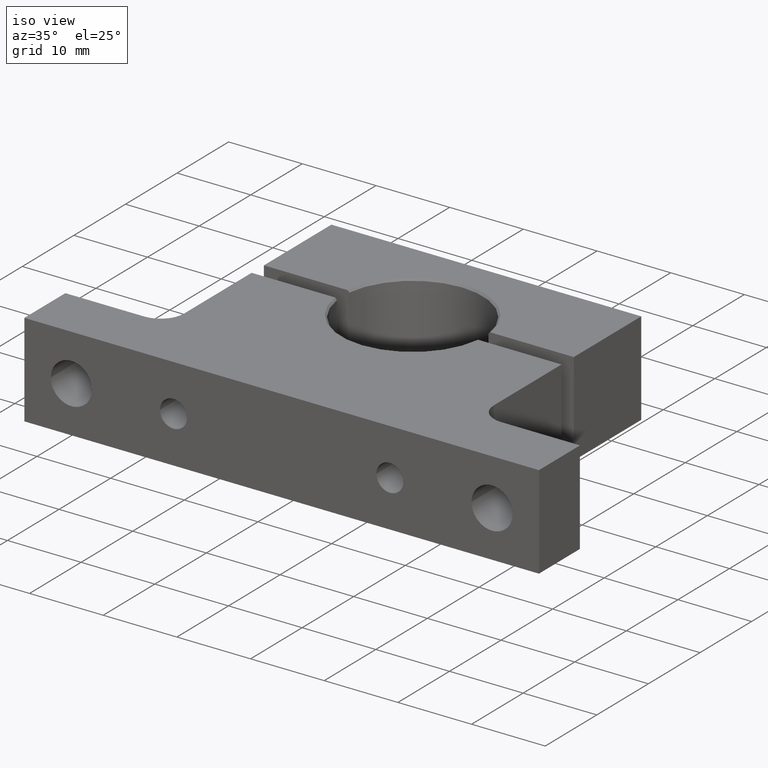
[diagram: clean part render]
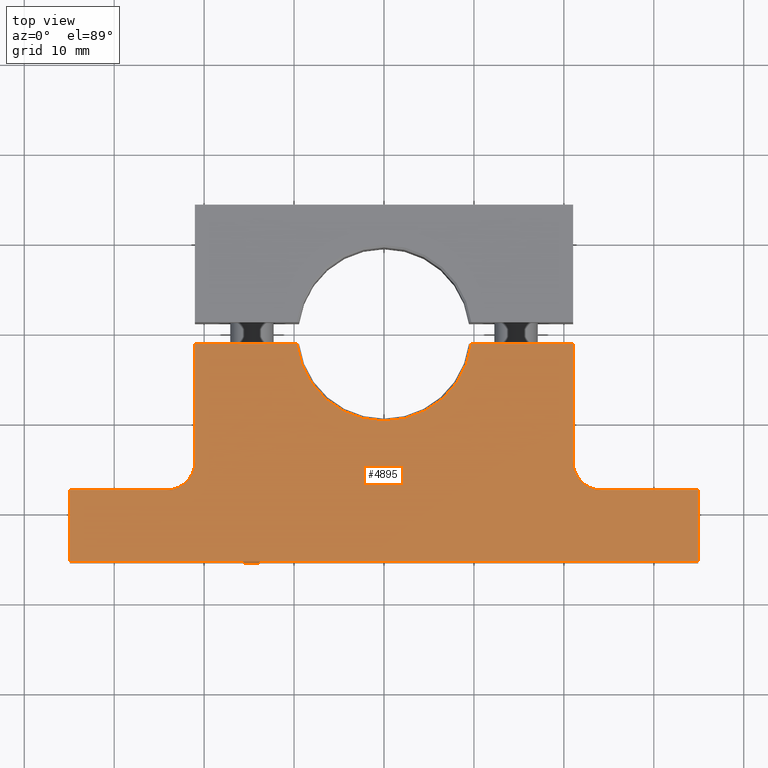
[diagram: tour spotlight — one face highlighted and labeled with its STEP entity id]
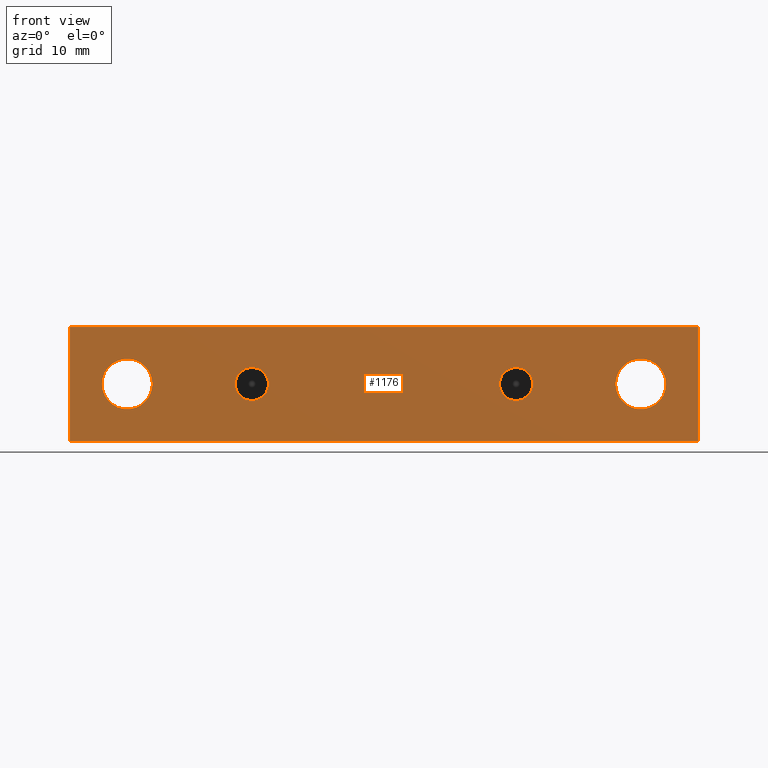
[diagram: tour spotlight — one face highlighted and labeled with its STEP entity id]
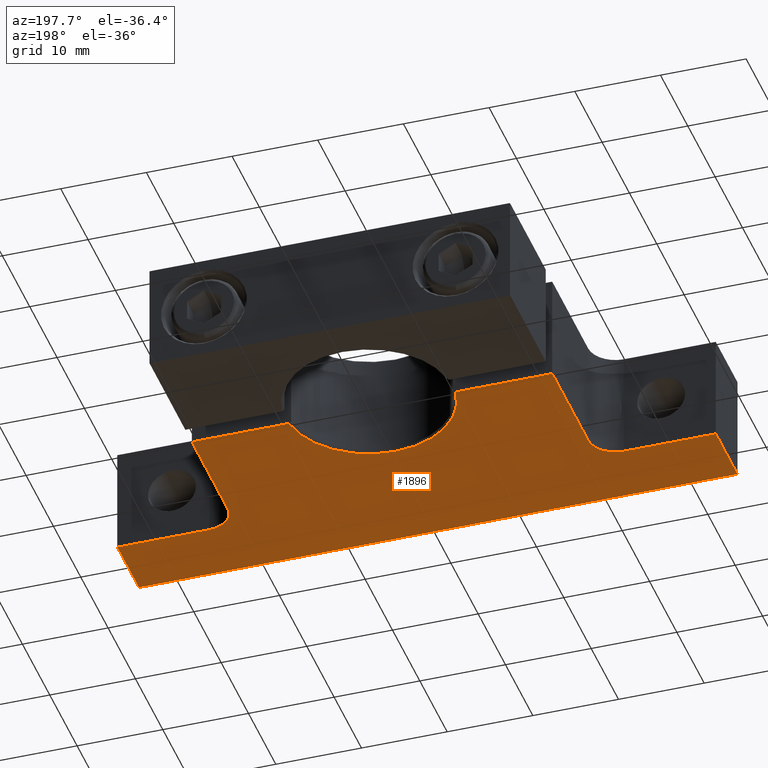
[diagram: tour spotlight — one face highlighted and labeled with its STEP entity id]
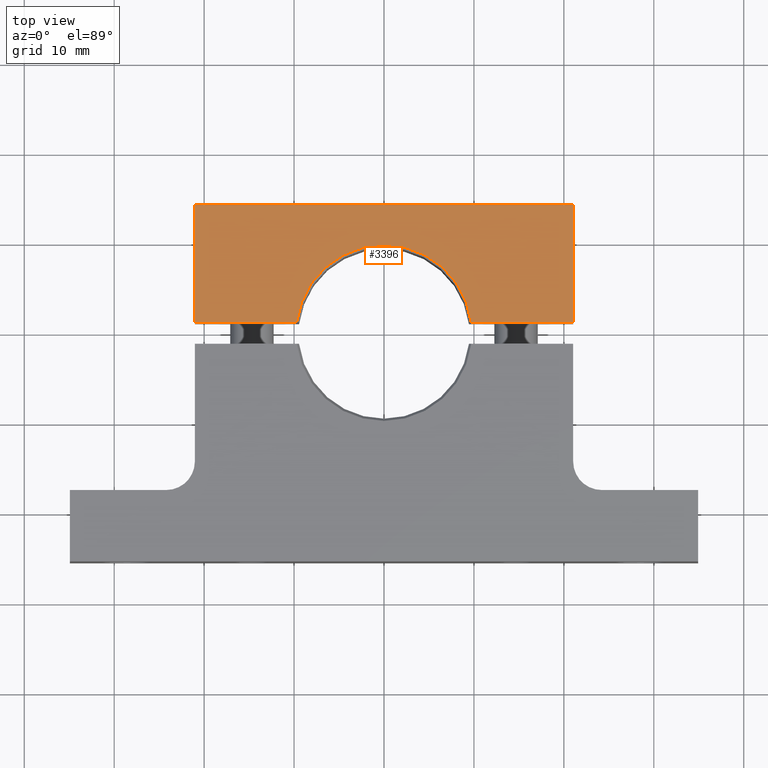
[diagram: tour spotlight — one face highlighted and labeled with its STEP entity id]
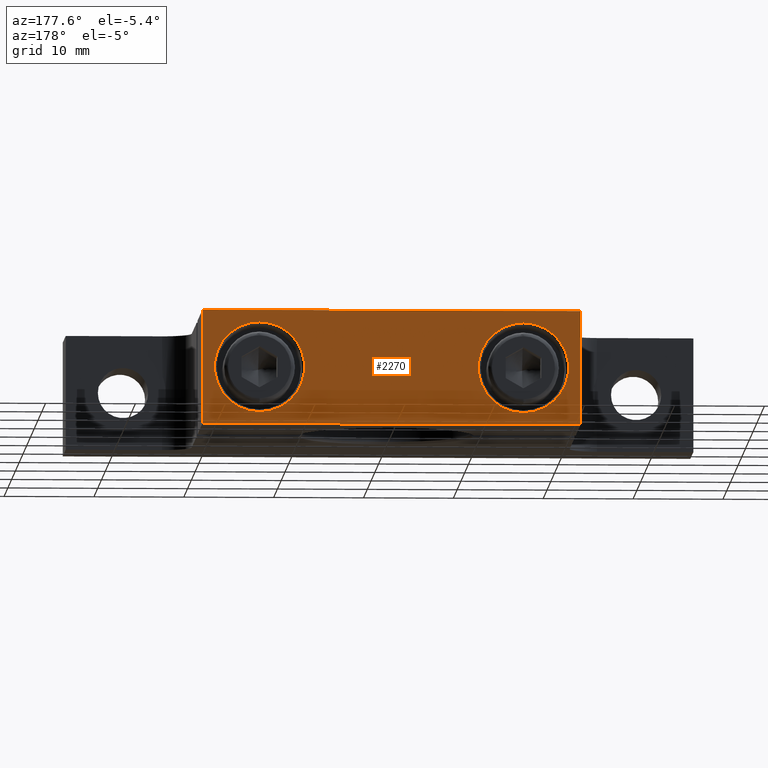
[diagram: tour spotlight — one face highlighted and labeled with its STEP entity id]
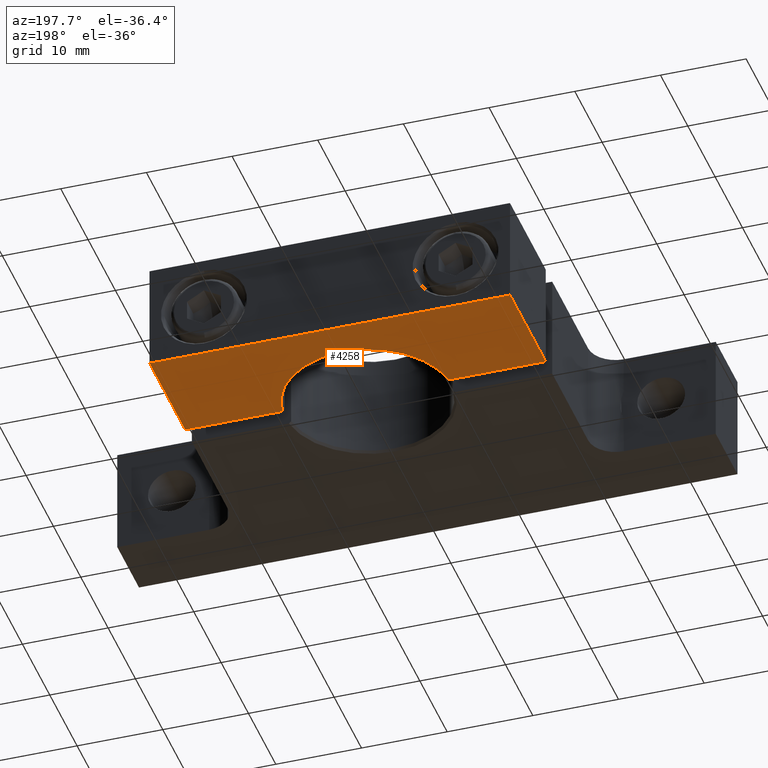
[diagram: tour spotlight — one face highlighted and labeled with its STEP entity id]
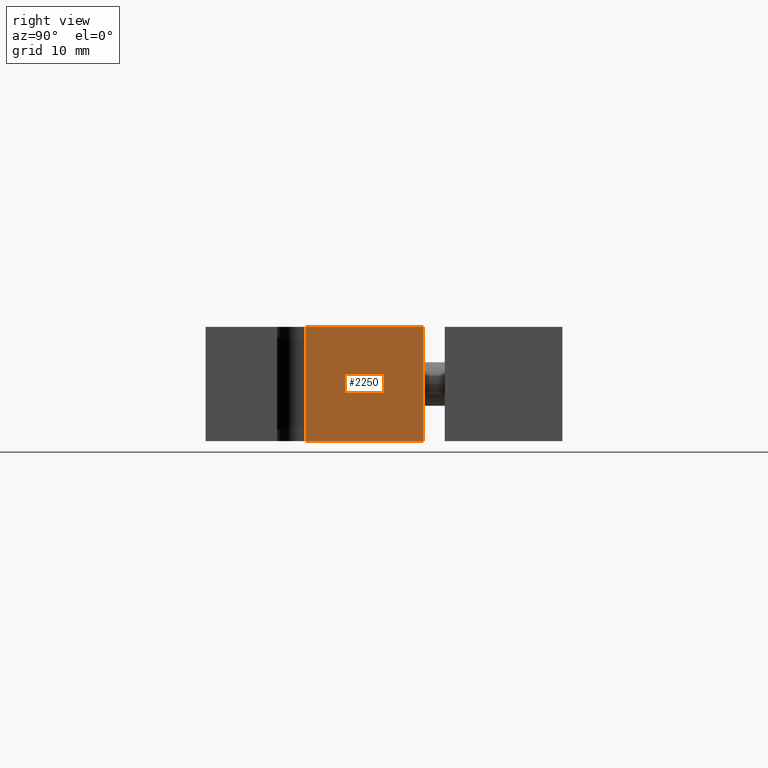
[diagram: tour spotlight — one face highlighted and labeled with its STEP entity id]
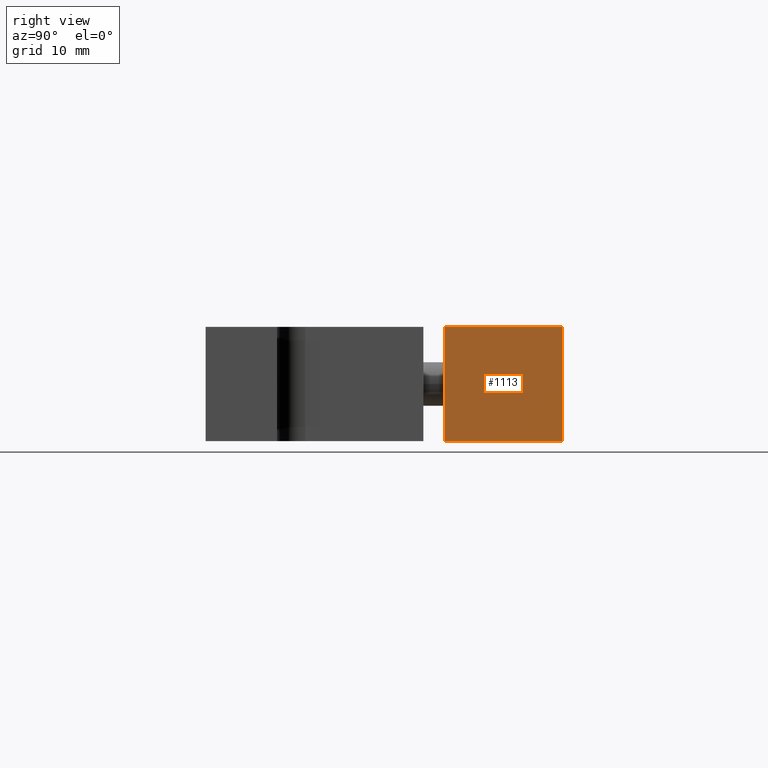
[diagram: tour spotlight — one face highlighted and labeled with its STEP entity id]
A machine part: a face-by-face anatomy tour. The part has 93 B-rep faces; the first image is the clean iso view, then the 8 largest visible faces are spotlighted one at a time (largest first), each with its STEP entity span.

Face 1 — top view, entity #4895. In plain terms, the highlighted planar face has unit normal (0, 0, 1).
Definition (entity closure, byte-faithful):
#80 = DIRECTION ( 'NONE',  ( 1.000000000000000000, 0.0000000000000000000, -0.0000000000000000000 ) ) ;
#120 = CARTESIAN_POINT ( 'NONE',  ( 5.463696000000001000E-017, -0.6875000000000001100, 0.2500000000000000600 ) ) ;
#168 = ORIENTED_EDGE ( 'NONE', *, *, #1902, .T. ) ;
#191 = EDGE_CURVE ( 'NONE', #2671, #2342, #3526, .T. ) ;
#194 = CARTESIAN_POINT ( 'NONE',  ( 1.375000000000000200, -1.000000000000000200, 0.2500000000000000600 ) ) ;
#207 = CARTESIAN_POINT ( 'NONE',  ( -0.3821357538513739900, -0.04687500000000001400, 0.2500000000045041700 ) ) ;
#280 = DIRECTION ( 'NONE',  ( 1.000000000000000000, 0.0000000000000000000, 0.0000000000000000000 ) ) ;
#377 = CARTESIAN_POINT ( 'NONE',  ( 5.463696000000001000E-017, -0.6875000000000001100, 0.2500000000000000600 ) ) ;
#451 = DIRECTION ( 'NONE',  ( -0.0000000000000000000, -0.0000000000000000000, -1.000000000000000000 ) ) ;
#508 = AXIS2_PLACEMENT_3D ( 'NONE', #4859, #2540, #280 ) ;
#618 = FACE_OUTER_BOUND ( 'NONE', #2855, .T. ) ;
#676 = CARTESIAN_POINT ( 'NONE',  ( -1.375000000000000200, -0.6182210772702301200, 0.2500000000000000600 ) ) ;
#677 = VERTEX_POINT ( 'NONE', #194 ) ;
#727 = CIRCLE ( 'NONE', #3467, 0.1250000000000000300 ) ;
#728 = ORIENTED_EDGE ( 'NONE', *, *, #4311, .T. ) ;
#789 = CARTESIAN_POINT ( 'NONE',  ( 0.8280000000000000700, -0.5625000000000001100, 0.2500000000000000600 ) ) ;
#985 = DIRECTION ( 'NONE',  ( -1.000000000000000000, -0.0000000000000000000, 0.0000000000000000000 ) ) ;
#1044 = CARTESIAN_POINT ( 'NONE',  ( 0.3821357538513739400, -0.04687500000000001400, 0.2500000000045041200 ) ) ;
#1053 = DIRECTION ( 'NONE',  ( 0.0000000000000000000, -1.000000000000000000, -0.0000000000000000000 ) ) ;
#1222 = CARTESIAN_POINT ( 'NONE',  ( 5.463696000000001000E-017, -1.000000000000000200, 0.2500000000000000600 ) ) ;
#1256 = EDGE_CURVE ( 'NONE', #3444, #1530, #1733, .T. ) ;
#1275 = ORIENTED_EDGE ( 'NONE', *, *, #2925, .T. ) ;
#1343 = CARTESIAN_POINT ( 'NONE',  ( -0.8280000000000000700, -0.04687500000000002800, 0.2500000000000000600 ) ) ;
#1397 = CARTESIAN_POINT ( 'NONE',  ( 1.375000000000000200, -0.6182210772702301200, 0.2500000000000000600 ) ) ;
#1416 = LINE ( 'NONE', #4298, #4338 ) ;
#1513 = CARTESIAN_POINT ( 'NONE',  ( 0.0000000000000000000, 0.0000000000000000000, 0.2500000000044874100 ) ) ;
#1530 = VERTEX_POINT ( 'NONE', #4635 ) ;
#1586 = DIRECTION ( 'NONE',  ( -0.0000000000000000000, 1.000000000000000000, 0.0000000000000000000 ) ) ;
#1613 = LINE ( 'NONE', #3261, #3625 ) ;
#1642 = VECTOR ( 'NONE', #4483, 39.37007874015748100 ) ;
#1654 = LINE ( 'NONE', #1222, #3422 ) ;
#1733 = LINE ( 'NONE', #377, #2724 ) ;
#1745 = LINE ( 'NONE', #4241, #2735 ) ;
#1791 = VERTEX_POINT ( 'NONE', #3685 ) ;
#1826 = VERTEX_POINT ( 'NONE', #1044 ) ;
#1863 = CARTESIAN_POINT ( 'NONE',  ( -0.8280000000000000700, -0.5625000000000001100, 0.2500000000000000600 ) ) ;
#1884 = VECTOR ( 'NONE', #4839, 39.37007874015748100 ) ;
#1902 = EDGE_CURVE ( 'NONE', #677, #2671, #4921, .T. ) ;
#1909 = DIRECTION ( 'NONE',  ( 1.000000000000000000, 0.0000000000000000000, 0.0000000000000000000 ) ) ;
#2116 = ORIENTED_EDGE ( 'NONE', *, *, #4224, .T. ) ;
#2147 = CARTESIAN_POINT ( 'NONE',  ( 5.463696000000001000E-017, -0.6182210772702301200, 0.2500000000000000600 ) ) ;
#2245 = VERTEX_POINT ( 'NONE', #4108 ) ;
#2290 = ORIENTED_EDGE ( 'NONE', *, *, #2492, .T. ) ;
#2342 = VERTEX_POINT ( 'NONE', #4553 ) ;
#2451 = VECTOR ( 'NONE', #1586, 39.37007874015748100 ) ;
#2492 = EDGE_CURVE ( 'NONE', #4181, #1791, #3472, .T. ) ;
#2508 = DIRECTION ( 'NONE',  ( 1.000000000000000000, 0.0000000000000000000, -0.0000000000000000000 ) ) ;
#2540 = DIRECTION ( 'NONE',  ( -0.0000000000000000000, -0.0000000000000000000, -1.000000000000000000 ) ) ;
#2555 = ORIENTED_EDGE ( 'NONE', *, *, #2803, .T. ) ;
#2635 = DIRECTION ( 'NONE',  ( -1.000000000000000000, -0.0000000000000000000, 0.0000000000000000000 ) ) ;
#2671 = VERTEX_POINT ( 'NONE', #3517 ) ;
#2702 = CARTESIAN_POINT ( 'NONE',  ( 0.8280000000000000700, -0.6182210772702301200, 0.2500000000000000600 ) ) ;
#2719 = CARTESIAN_POINT ( 'NONE',  ( -0.9530000000000000700, -0.5625000000000001100, 0.2500000000000000600 ) ) ;
#2724 = VECTOR ( 'NONE', #2635, 39.37007874015748100 ) ;
#2735 = VECTOR ( 'NONE', #3866, 39.37007874015748100 ) ;
#2740 = VECTOR ( 'NONE', #1053, 39.37007874015748100 ) ;
#2803 = EDGE_CURVE ( 'NONE', #2245, #677, #1654, .T. ) ;
#2855 = EDGE_LOOP ( 'NONE', ( #2290, #2116, #3919, #728, #1275, #3795, #4844, #4273, #2555, #168, #2889, #3324 ) ) ;
#2861 = CIRCLE ( 'NONE', #508, 0.1250000000000000300 ) ;
#2889 = ORIENTED_EDGE ( 'NONE', *, *, #191, .T. ) ;
#2925 = EDGE_CURVE ( 'NONE', #4818, #4123, #1416, .T. ) ;
#3101 = DIRECTION ( 'NONE',  ( 1.000000000000000000, 0.0000000000000000000, 0.0000000000000000000 ) ) ;
#3230 = CARTESIAN_POINT ( 'NONE',  ( -0.9530000000000000700, -0.6875000000000001100, 0.2500000000000000600 ) ) ;
#3261 = CARTESIAN_POINT ( 'NONE',  ( 5.463696000000001000E-017, -0.04687500000000002800, 0.2500000000000000600 ) ) ;
#3324 = ORIENTED_EDGE ( 'NONE', *, *, #3947, .T. ) ;
#3422 = VECTOR ( 'NONE', #80, 39.37007874015748100 ) ;
#3444 = VERTEX_POINT ( 'NONE', #3230 ) ;
#3467 = AXIS2_PLACEMENT_3D ( 'NONE', #2719, #451, #3101 ) ;
#3472 = LINE ( 'NONE', #2702, #2451 ) ;
#3517 = CARTESIAN_POINT ( 'NONE',  ( 1.375000000000000200, -0.6875000000000001100, 0.2500000000000000600 ) ) ;
#3526 = LINE ( 'NONE', #120, #1642 ) ;
#3589 = EDGE_CURVE ( 'NONE', #1826, #4826, #3758, .T. ) ;
#3625 = VECTOR ( 'NONE', #985, 39.37007874015748100 ) ;
#3630 = PLANE ( 'NONE',  #4398 ) ;
#3685 = CARTESIAN_POINT ( 'NONE',  ( 0.8280000000000000700, -0.04687500000000002100, 0.2500000000000000600 ) ) ;
#3758 = CIRCLE ( 'NONE', #4253, 0.3849999999955129300 ) ;
#3795 = ORIENTED_EDGE ( 'NONE', *, *, #4225, .T. ) ;
#3866 = DIRECTION ( 'NONE',  ( -1.000000000000000000, -0.0000000000000000000, 0.0000000000000000000 ) ) ;
#3885 = LINE ( 'NONE', #676, #2740 ) ;
#3919 = ORIENTED_EDGE ( 'NONE', *, *, #3589, .T. ) ;
#3947 = EDGE_CURVE ( 'NONE', #2342, #4181, #2861, .T. ) ;
#3968 = DIRECTION ( 'NONE',  ( 0.0000000000000000000, -1.000000000000000000, -0.0000000000000000000 ) ) ;
#4003 = EDGE_CURVE ( 'NONE', #1530, #2245, #3885, .T. ) ;
#4108 = CARTESIAN_POINT ( 'NONE',  ( -1.375000000000000200, -1.000000000000000200, 0.2500000000000000600 ) ) ;
#4123 = VERTEX_POINT ( 'NONE', #1863 ) ;
#4181 = VERTEX_POINT ( 'NONE', #789 ) ;
#4189 = DIRECTION ( 'NONE',  ( 0.0000000000000000000, -0.0000000000000000000, -1.000000000000000000 ) ) ;
#4224 = EDGE_CURVE ( 'NONE', #1791, #1826, #1745, .T. ) ;
#4225 = EDGE_CURVE ( 'NONE', #4123, #3444, #727, .T. ) ;
#4241 = CARTESIAN_POINT ( 'NONE',  ( 5.463696000000001000E-017, -0.04687500000000002800, 0.2500000000000000600 ) ) ;
#4253 = AXIS2_PLACEMENT_3D ( 'NONE', #1513, #4189, #1909 ) ;
#4273 = ORIENTED_EDGE ( 'NONE', *, *, #4003, .T. ) ;
#4298 = CARTESIAN_POINT ( 'NONE',  ( -0.8280000000000000700, -0.6182210772702301200, 0.2500000000000000600 ) ) ;
#4311 = EDGE_CURVE ( 'NONE', #4826, #4818, #1613, .T. ) ;
#4338 = VECTOR ( 'NONE', #3968, 39.37007874015748100 ) ;
#4398 = AXIS2_PLACEMENT_3D ( 'NONE', #2147, #4830, #2508 ) ;
#4483 = DIRECTION ( 'NONE',  ( -1.000000000000000000, -0.0000000000000000000, 0.0000000000000000000 ) ) ;
#4553 = CARTESIAN_POINT ( 'NONE',  ( 0.9530000000000000700, -0.6875000000000001100, 0.2500000000000000600 ) ) ;
#4635 = CARTESIAN_POINT ( 'NONE',  ( -1.375000000000000200, -0.6875000000000001100, 0.2500000000000000600 ) ) ;
#4818 = VERTEX_POINT ( 'NONE', #1343 ) ;
#4826 = VERTEX_POINT ( 'NONE', #207 ) ;
#4830 = DIRECTION ( 'NONE',  ( 0.0000000000000000000, 0.0000000000000000000, 1.000000000000000000 ) ) ;
#4839 = DIRECTION ( 'NONE',  ( -0.0000000000000000000, 1.000000000000000000, 0.0000000000000000000 ) ) ;
#4844 = ORIENTED_EDGE ( 'NONE', *, *, #1256, .T. ) ;
#4859 = CARTESIAN_POINT ( 'NONE',  ( 0.9530000000000000700, -0.5625000000000001100, 0.2500000000000000600 ) ) ;
#4895 = ADVANCED_FACE ( 'NONE', ( #618 ), #3630, .T. ) ;
#4921 = LINE ( 'NONE', #1397, #1884 ) ;

Face 2 — front view, entity #1176. In plain terms, the highlighted planar face has unit normal (0, -1, 0).
Definition (entity closure, byte-faithful):
#20 = CARTESIAN_POINT ( 'NONE',  ( 0.5781250000000006700, -1.000000000000001300, 0.0000000000000000000 ) ) ;
#80 = DIRECTION ( 'NONE',  ( 1.000000000000000000, 0.0000000000000000000, -0.0000000000000000000 ) ) ;
#147 = DIRECTION ( 'NONE',  ( -2.396667000000000100E-016, 1.000000000000000000, 0.0000000000000000000 ) ) ;
#194 = CARTESIAN_POINT ( 'NONE',  ( 1.375000000000000200, -1.000000000000000200, 0.2500000000000000600 ) ) ;
#210 = DIRECTION ( 'NONE',  ( 0.0000000000000000000, 0.0000000000000000000, -1.000000000000000000 ) ) ;
#220 = ORIENTED_EDGE ( 'NONE', *, *, #2803, .F. ) ;
#237 = DIRECTION ( 'NONE',  ( -1.000000000000000000, 0.0000000000000000000, 0.0000000000000000000 ) ) ;
#240 = AXIS2_PLACEMENT_3D ( 'NONE', #1798, #4463, #2159 ) ;
#249 = CARTESIAN_POINT ( 'NONE',  ( 1.375000000000000200, -1.000000000000000200, -0.2500000000000000600 ) ) ;
#267 = CARTESIAN_POINT ( 'NONE',  ( 1.124125000000001200, -1.000000000000000200, 0.0000000000000000000 ) ) ;
#299 = VECTOR ( 'NONE', #3048, 39.37007874015748100 ) ;
#366 = DIRECTION ( 'NONE',  ( -4.143087000000000100E-016, 1.000000000000000000, 0.0000000000000000000 ) ) ;
#398 = CARTESIAN_POINT ( 'NONE',  ( 1.375000000000000200, -1.000000000000000200, -0.2500000000000000600 ) ) ;
#409 = DIRECTION ( 'NONE',  ( -1.000000000000000000, 0.0000000000000000000, 0.0000000000000000000 ) ) ;
#468 = VERTEX_POINT ( 'NONE', #4017 ) ;
#483 = AXIS2_PLACEMENT_3D ( 'NONE', #267, #2922, #665 ) ;
#502 = VERTEX_POINT ( 'NONE', #4719 ) ;
#657 = FACE_BOUND ( 'NONE', #4734, .T. ) ;
#665 = DIRECTION ( 'NONE',  ( -1.000000000000000000, 0.0000000000000000000, 0.0000000000000000000 ) ) ;
#677 = VERTEX_POINT ( 'NONE', #194 ) ;
#678 = EDGE_LOOP ( 'NONE', ( #1212, #3488 ) ) ;
#688 = EDGE_CURVE ( 'NONE', #677, #4403, #2615, .T. ) ;
#696 = EDGE_LOOP ( 'NONE', ( #4001, #2840, #220, #4942 ) ) ;
#762 = CARTESIAN_POINT ( 'NONE',  ( 1.234125000000001200, -1.000000000000000200, 1.347111479062091700E-017 ) ) ;
#776 = AXIS2_PLACEMENT_3D ( 'NONE', #1422, #4085, #1811 ) ;
#842 = CIRCLE ( 'NONE', #4505, 0.1099999999999999200 ) ;
#1008 = EDGE_LOOP ( 'NONE', ( #1556, #2646 ) ) ;
#1009 = VERTEX_POINT ( 'NONE', #2095 ) ;
#1051 = PLANE ( 'NONE',  #1325 ) ;
#1063 = ORIENTED_EDGE ( 'NONE', *, *, #4457, .T. ) ;
#1176 = ADVANCED_FACE ( 'NONE', ( #1673, #3692, #4718, #657, #4607 ), #1051, .T. ) ;
#1212 = ORIENTED_EDGE ( 'NONE', *, *, #2886, .T. ) ;
#1222 = CARTESIAN_POINT ( 'NONE',  ( 5.463696000000001000E-017, -1.000000000000000200, 0.2500000000000000600 ) ) ;
#1254 = ORIENTED_EDGE ( 'NONE', *, *, #4888, .T. ) ;
#1276 = AXIS2_PLACEMENT_3D ( 'NONE', #1450, #4122, #1843 ) ;
#1325 = AXIS2_PLACEMENT_3D ( 'NONE', #4115, #1836, #4504 ) ;
#1422 = CARTESIAN_POINT ( 'NONE',  ( -0.5781249999999995600, -1.000000000000001300, 0.0000000000000000000 ) ) ;
#1450 = CARTESIAN_POINT ( 'NONE',  ( 1.124125000000001200, -1.000000000000000200, 0.0000000000000000000 ) ) ;
#1556 = ORIENTED_EDGE ( 'NONE', *, *, #3570, .T. ) ;
#1633 = VECTOR ( 'NONE', #210, 39.37007874015748100 ) ;
#1650 = VECTOR ( 'NONE', #1882, 39.37007874015748100 ) ;
#1654 = LINE ( 'NONE', #1222, #3422 ) ;
#1673 = FACE_BOUND ( 'NONE', #3185, .T. ) ;
#1732 = CIRCLE ( 'NONE', #776, 0.07250000000000005100 ) ;
#1798 = CARTESIAN_POINT ( 'NONE',  ( -1.124125000000000000, -1.000000000000002400, 0.0000000000000000000 ) ) ;
#1811 = DIRECTION ( 'NONE',  ( -1.000000000000000000, 0.0000000000000000000, 0.0000000000000000000 ) ) ;
#1836 = DIRECTION ( 'NONE',  ( 0.0000000000000000000, -1.000000000000000000, 0.0000000000000000000 ) ) ;
#1843 = DIRECTION ( 'NONE',  ( -1.000000000000000000, 0.0000000000000000000, 0.0000000000000000000 ) ) ;
#1882 = DIRECTION ( 'NONE',  ( 0.0000000000000000000, -0.0000000000000000000, -1.000000000000000000 ) ) ;
#1898 = CARTESIAN_POINT ( 'NONE',  ( -1.375000000000000200, -1.000000000000000200, 0.0000000000000000000 ) ) ;
#2095 = CARTESIAN_POINT ( 'NONE',  ( -0.6506249999999995600, -1.000000000000001300, 0.0000000000000000000 ) ) ;
#2112 = EDGE_CURVE ( 'NONE', #2802, #468, #4884, .T. ) ;
#2159 = DIRECTION ( 'NONE',  ( -1.000000000000000000, 0.0000000000000000000, 0.0000000000000000000 ) ) ;
#2245 = VERTEX_POINT ( 'NONE', #4108 ) ;
#2248 = EDGE_CURVE ( 'NONE', #2565, #3450, #4159, .T. ) ;
#2348 = EDGE_CURVE ( 'NONE', #2245, #3710, #4693, .T. ) ;
#2358 = AXIS2_PLACEMENT_3D ( 'NONE', #20, #2675, #409 ) ;
#2411 = CARTESIAN_POINT ( 'NONE',  ( 0.5781250000000006700, -1.000000000000001300, 0.0000000000000000000 ) ) ;
#2477 = CIRCLE ( 'NONE', #483, 0.1100000000000000600 ) ;
#2494 = DIRECTION ( 'NONE',  ( -2.396667000000000100E-016, 1.000000000000000000, 0.0000000000000000000 ) ) ;
#2562 = AXIS2_PLACEMENT_3D ( 'NONE', #4816, #2494, #237 ) ;
#2565 = VERTEX_POINT ( 'NONE', #3833 ) ;
#2615 = LINE ( 'NONE', #4787, #1633 ) ;
#2623 = CARTESIAN_POINT ( 'NONE',  ( -1.124125000000000000, -1.000000000000002400, 0.0000000000000000000 ) ) ;
#2646 = ORIENTED_EDGE ( 'NONE', *, *, #2248, .T. ) ;
#2675 = DIRECTION ( 'NONE',  ( -2.396667000000000100E-016, 1.000000000000000000, 0.0000000000000000000 ) ) ;
#2802 = VERTEX_POINT ( 'NONE', #4672 ) ;
#2803 = EDGE_CURVE ( 'NONE', #2245, #677, #1654, .T. ) ;
#2806 = DIRECTION ( 'NONE',  ( -1.000000000000000000, 0.0000000000000000000, 0.0000000000000000000 ) ) ;
#2840 = ORIENTED_EDGE ( 'NONE', *, *, #688, .F. ) ;
#2886 = EDGE_CURVE ( 'NONE', #468, #2802, #4588, .T. ) ;
#2911 = AXIS2_PLACEMENT_3D ( 'NONE', #2411, #147, #2806 ) ;
#2922 = DIRECTION ( 'NONE',  ( -4.143087000000000100E-016, 1.000000000000000000, 0.0000000000000000000 ) ) ;
#3013 = DIRECTION ( 'NONE',  ( -1.000000000000000000, 0.0000000000000000000, 0.0000000000000000000 ) ) ;
#3045 = CARTESIAN_POINT ( 'NONE',  ( -1.375000000000000200, -1.000000000000000200, -0.2500000000000000600 ) ) ;
#3048 = DIRECTION ( 'NONE',  ( 1.000000000000000000, 0.0000000000000000000, 0.0000000000000000000 ) ) ;
#3185 = EDGE_LOOP ( 'NONE', ( #3640, #1254 ) ) ;
#3207 = LINE ( 'NONE', #398, #299 ) ;
#3222 = CARTESIAN_POINT ( 'NONE',  ( 1.014125000000001100, -1.000000000000000200, 0.0000000000000000000 ) ) ;
#3358 = ORIENTED_EDGE ( 'NONE', *, *, #4018, .T. ) ;
#3422 = VECTOR ( 'NONE', #80, 39.37007874015748100 ) ;
#3450 = VERTEX_POINT ( 'NONE', #4793 ) ;
#3488 = ORIENTED_EDGE ( 'NONE', *, *, #2112, .T. ) ;
#3521 = CIRCLE ( 'NONE', #2562, 0.07250000000000005100 ) ;
#3570 = EDGE_CURVE ( 'NONE', #3450, #2565, #842, .T. ) ;
#3640 = ORIENTED_EDGE ( 'NONE', *, *, #3934, .T. ) ;
#3692 = FACE_BOUND ( 'NONE', #678, .T. ) ;
#3710 = VERTEX_POINT ( 'NONE', #3045 ) ;
#3769 = CIRCLE ( 'NONE', #1276, 0.1100000000000000600 ) ;
#3833 = CARTESIAN_POINT ( 'NONE',  ( -1.014125000000000200, -1.000000000000002400, 1.347111479062089900E-017 ) ) ;
#3934 = EDGE_CURVE ( 'NONE', #1009, #502, #1732, .T. ) ;
#4001 = ORIENTED_EDGE ( 'NONE', *, *, #4162, .T. ) ;
#4017 = CARTESIAN_POINT ( 'NONE',  ( 0.5056250000000006600, -1.000000000000001300, 0.0000000000000000000 ) ) ;
#4018 = EDGE_CURVE ( 'NONE', #4758, #4596, #3769, .T. ) ;
#4085 = DIRECTION ( 'NONE',  ( -2.396667000000000100E-016, 1.000000000000000000, 0.0000000000000000000 ) ) ;
#4108 = CARTESIAN_POINT ( 'NONE',  ( -1.375000000000000200, -1.000000000000000200, 0.2500000000000000600 ) ) ;
#4115 = CARTESIAN_POINT ( 'NONE',  ( 1.375000000000000200, -1.000000000000000200, 0.0000000000000000000 ) ) ;
#4122 = DIRECTION ( 'NONE',  ( -4.143087000000000100E-016, 1.000000000000000000, 0.0000000000000000000 ) ) ;
#4159 = CIRCLE ( 'NONE', #240, 0.1099999999999999200 ) ;
#4162 = EDGE_CURVE ( 'NONE', #3710, #4403, #3207, .T. ) ;
#4403 = VERTEX_POINT ( 'NONE', #249 ) ;
#4457 = EDGE_CURVE ( 'NONE', #4596, #4758, #2477, .T. ) ;
#4463 = DIRECTION ( 'NONE',  ( -4.143087000000000100E-016, 1.000000000000000000, 0.0000000000000000000 ) ) ;
#4504 = DIRECTION ( 'NONE',  ( 0.0000000000000000000, -0.0000000000000000000, -1.000000000000000000 ) ) ;
#4505 = AXIS2_PLACEMENT_3D ( 'NONE', #2623, #366, #3013 ) ;
#4588 = CIRCLE ( 'NONE', #2911, 0.07249999999999998100 ) ;
#4596 = VERTEX_POINT ( 'NONE', #762 ) ;
#4607 = FACE_OUTER_BOUND ( 'NONE', #696, .T. ) ;
#4672 = CARTESIAN_POINT ( 'NONE',  ( 0.6506250000000006800, -1.000000000000001300, 8.878689293818323400E-018 ) ) ;
#4693 = LINE ( 'NONE', #1898, #1650 ) ;
#4718 = FACE_BOUND ( 'NONE', #1008, .T. ) ;
#4719 = CARTESIAN_POINT ( 'NONE',  ( -0.5056249999999995500, -1.000000000000001300, 8.878689293818323400E-018 ) ) ;
#4734 = EDGE_LOOP ( 'NONE', ( #3358, #1063 ) ) ;
#4758 = VERTEX_POINT ( 'NONE', #3222 ) ;
#4787 = CARTESIAN_POINT ( 'NONE',  ( 1.375000000000000200, -1.000000000000000200, 0.0000000000000000000 ) ) ;
#4793 = CARTESIAN_POINT ( 'NONE',  ( -1.234125000000000100, -1.000000000000002400, 0.0000000000000000000 ) ) ;
#4816 = CARTESIAN_POINT ( 'NONE',  ( -0.5781249999999995600, -1.000000000000001300, 0.0000000000000000000 ) ) ;
#4884 = CIRCLE ( 'NONE', #2358, 0.07249999999999998100 ) ;
#4888 = EDGE_CURVE ( 'NONE', #502, #1009, #3521, .T. ) ;
#4942 = ORIENTED_EDGE ( 'NONE', *, *, #2348, .T. ) ;

Face 3 — auxiliary view, entity #1896. In plain terms, the highlighted planar face has unit normal (0, 0, 1).
Definition (entity closure, byte-faithful):
#184 = CARTESIAN_POINT ( 'NONE',  ( 0.8280000000000000700, -0.04687500000000000700, -0.2500000000000000600 ) ) ;
#249 = CARTESIAN_POINT ( 'NONE',  ( 1.375000000000000200, -1.000000000000000200, -0.2500000000000000600 ) ) ;
#254 = DIRECTION ( 'NONE',  ( -1.000000000000000000, -0.0000000000000000000, 0.0000000000000000000 ) ) ;
#283 = CARTESIAN_POINT ( 'NONE',  ( 1.375000000000000200, -0.6875000000000001100, -0.2500000000000000600 ) ) ;
#299 = VECTOR ( 'NONE', #3048, 39.37007874015748100 ) ;
#303 = VECTOR ( 'NONE', #3584, 39.37007874015748100 ) ;
#388 = CARTESIAN_POINT ( 'NONE',  ( -0.3821357538513739400, -0.04687500000000000700, -0.2500000000045041200 ) ) ;
#398 = CARTESIAN_POINT ( 'NONE',  ( 1.375000000000000200, -1.000000000000000200, -0.2500000000000000600 ) ) ;
#430 = AXIS2_PLACEMENT_3D ( 'NONE', #3279, #1018, #3669 ) ;
#445 = FACE_OUTER_BOUND ( 'NONE', #3503, .T. ) ;
#463 = CARTESIAN_POINT ( 'NONE',  ( -0.8280000000000000700, -0.04687500000000002100, -0.2500000000000000600 ) ) ;
#472 = CARTESIAN_POINT ( 'NONE',  ( -0.8280000000000000700, -0.5625000000000001100, -0.2500000000000000600 ) ) ;
#541 = CARTESIAN_POINT ( 'NONE',  ( -1.375000000000000200, -0.6875000000000001100, -0.2500000000000000600 ) ) ;
#555 = CARTESIAN_POINT ( 'NONE',  ( 0.9530000000000000700, -0.6875000000000001100, -0.2500000000000000600 ) ) ;
#601 = CIRCLE ( 'NONE', #1087, 0.1250000000000000300 ) ;
#654 = EDGE_CURVE ( 'NONE', #3864, #1337, #1764, .T. ) ;
#671 = CARTESIAN_POINT ( 'NONE',  ( 0.3720587781184580000, -0.04687500000000000700, -0.2500000000000000600 ) ) ;
#681 = CARTESIAN_POINT ( 'NONE',  ( 0.0000000000000000000, 0.0000000000000000000, -0.2500000000044874100 ) ) ;
#719 = AXIS2_PLACEMENT_3D ( 'NONE', #681, #3321, #1055 ) ;
#729 = CARTESIAN_POINT ( 'NONE',  ( -0.9530000000000000700, -0.5625000000000001100, -0.2500000000000000600 ) ) ;
#769 = CARTESIAN_POINT ( 'NONE',  ( -0.8280000000000000700, -0.5625000000000001100, -0.2500000000000000600 ) ) ;
#834 = LINE ( 'NONE', #769, #4775 ) ;
#847 = EDGE_CURVE ( 'NONE', #3868, #3710, #2495, .T. ) ;
#907 = CARTESIAN_POINT ( 'NONE',  ( -0.9530000000000000700, -0.6875000000000001100, -0.2500000000000000600 ) ) ;
#964 = VERTEX_POINT ( 'NONE', #2074 ) ;
#983 = VERTEX_POINT ( 'NONE', #184 ) ;
#1018 = DIRECTION ( 'NONE',  ( 0.0000000000000000000, 0.0000000000000000000, 1.000000000000000000 ) ) ;
#1055 = DIRECTION ( 'NONE',  ( -1.000000000000000000, 0.0000000000000000000, 0.0000000000000000000 ) ) ;
#1079 = ORIENTED_EDGE ( 'NONE', *, *, #3407, .F. ) ;
#1087 = AXIS2_PLACEMENT_3D ( 'NONE', #1183, #3845, #1563 ) ;
#1108 = DIRECTION ( 'NONE',  ( 1.000000000000000000, 0.0000000000000000000, 0.0000000000000000000 ) ) ;
#1145 = VERTEX_POINT ( 'NONE', #907 ) ;
#1183 = CARTESIAN_POINT ( 'NONE',  ( 0.9530000000000000700, -0.5625000000000001100, -0.2500000000000000600 ) ) ;
#1278 = EDGE_CURVE ( 'NONE', #3194, #2964, #834, .T. ) ;
#1337 = VERTEX_POINT ( 'NONE', #1923 ) ;
#1398 = LINE ( 'NONE', #671, #3408 ) ;
#1563 = DIRECTION ( 'NONE',  ( 1.000000000000000000, 0.0000000000000000000, 0.0000000000000000000 ) ) ;
#1580 = VECTOR ( 'NONE', #3066, 39.37007874015748100 ) ;
#1659 = LINE ( 'NONE', #283, #4590 ) ;
#1664 = ORIENTED_EDGE ( 'NONE', *, *, #2266, .F. ) ;
#1764 = LINE ( 'NONE', #555, #4679 ) ;
#1896 = ADVANCED_FACE ( 'NONE', ( #445 ), #3719, .F. ) ;
#1923 = CARTESIAN_POINT ( 'NONE',  ( 0.9530000000000000700, -0.6875000000000001100, -0.2500000000000000600 ) ) ;
#1931 = EDGE_CURVE ( 'NONE', #983, #4723, #1398, .T. ) ;
#2074 = CARTESIAN_POINT ( 'NONE',  ( 0.8280000000000000700, -0.5625000000000001100, -0.2500000000000000600 ) ) ;
#2185 = ORIENTED_EDGE ( 'NONE', *, *, #1931, .F. ) ;
#2195 = LINE ( 'NONE', #3125, #3083 ) ;
#2266 = EDGE_CURVE ( 'NONE', #4403, #3864, #1659, .T. ) ;
#2364 = VERTEX_POINT ( 'NONE', #388 ) ;
#2432 = CARTESIAN_POINT ( 'NONE',  ( -1.375000000000000200, -1.000000000000000200, -0.2500000000000000600 ) ) ;
#2444 = EDGE_CURVE ( 'NONE', #1145, #3868, #4753, .T. ) ;
#2495 = LINE ( 'NONE', #2432, #3518 ) ;
#2641 = ORIENTED_EDGE ( 'NONE', *, *, #3801, .F. ) ;
#2800 = AXIS2_PLACEMENT_3D ( 'NONE', #729, #3369, #1108 ) ;
#2814 = CARTESIAN_POINT ( 'NONE',  ( 1.375000000000000200, -0.6875000000000001100, -0.2500000000000000600 ) ) ;
#2937 = DIRECTION ( 'NONE',  ( -0.0000000000000000000, 1.000000000000000000, 0.0000000000000000000 ) ) ;
#2964 = VERTEX_POINT ( 'NONE', #472 ) ;
#3027 = DIRECTION ( 'NONE',  ( -0.0000000000000000000, -1.000000000000000000, 0.0000000000000000000 ) ) ;
#3045 = CARTESIAN_POINT ( 'NONE',  ( -1.375000000000000200, -1.000000000000000200, -0.2500000000000000600 ) ) ;
#3048 = DIRECTION ( 'NONE',  ( 1.000000000000000000, 0.0000000000000000000, 0.0000000000000000000 ) ) ;
#3066 = DIRECTION ( 'NONE',  ( -1.000000000000000000, -0.0000000000000000000, 0.0000000000000000000 ) ) ;
#3071 = CARTESIAN_POINT ( 'NONE',  ( 0.3821357538513739900, -0.04687500000000000700, -0.2500000000045041700 ) ) ;
#3083 = VECTOR ( 'NONE', #4303, 39.37007874015748100 ) ;
#3125 = CARTESIAN_POINT ( 'NONE',  ( 0.8280000000000000700, -0.04687500000000000700, -0.2500000000000000600 ) ) ;
#3194 = VERTEX_POINT ( 'NONE', #463 ) ;
#3207 = LINE ( 'NONE', #398, #299 ) ;
#3279 = CARTESIAN_POINT ( 'NONE',  ( 1.912294000000000100E-017, -0.6182210772702301200, -0.2500000000000000600 ) ) ;
#3321 = DIRECTION ( 'NONE',  ( 0.0000000000000000000, 0.0000000000000000000, -1.000000000000000000 ) ) ;
#3369 = DIRECTION ( 'NONE',  ( 0.0000000000000000000, 0.0000000000000000000, 1.000000000000000000 ) ) ;
#3407 = EDGE_CURVE ( 'NONE', #2364, #3194, #4373, .T. ) ;
#3408 = VECTOR ( 'NONE', #254, 39.37007874015748100 ) ;
#3503 = EDGE_LOOP ( 'NONE', ( #2185, #2641, #4118, #4585, #1664, #3568, #4592, #4263, #3746, #4589, #1079, #3764 ) ) ;
#3518 = VECTOR ( 'NONE', #4749, 39.37007874015748100 ) ;
#3568 = ORIENTED_EDGE ( 'NONE', *, *, #4162, .F. ) ;
#3584 = DIRECTION ( 'NONE',  ( -1.000000000000000000, -0.0000000000000000000, 0.0000000000000000000 ) ) ;
#3585 = CIRCLE ( 'NONE', #719, 0.3849999999955129300 ) ;
#3613 = DIRECTION ( 'NONE',  ( -1.000000000000000000, -0.0000000000000000000, 0.0000000000000000000 ) ) ;
#3637 = CIRCLE ( 'NONE', #2800, 0.1250000000000000300 ) ;
#3669 = DIRECTION ( 'NONE',  ( 1.000000000000000000, 0.0000000000000000000, -0.0000000000000000000 ) ) ;
#3710 = VERTEX_POINT ( 'NONE', #3045 ) ;
#3711 = EDGE_CURVE ( 'NONE', #964, #1337, #601, .T. ) ;
#3719 = PLANE ( 'NONE',  #430 ) ;
#3746 = ORIENTED_EDGE ( 'NONE', *, *, #4094, .T. ) ;
#3764 = ORIENTED_EDGE ( 'NONE', *, *, #4934, .F. ) ;
#3801 = EDGE_CURVE ( 'NONE', #964, #983, #2195, .T. ) ;
#3845 = DIRECTION ( 'NONE',  ( 0.0000000000000000000, 0.0000000000000000000, 1.000000000000000000 ) ) ;
#3849 = CARTESIAN_POINT ( 'NONE',  ( -1.375000000000000200, -0.6875000000000001100, -0.2500000000000000600 ) ) ;
#3864 = VERTEX_POINT ( 'NONE', #2814 ) ;
#3868 = VERTEX_POINT ( 'NONE', #541 ) ;
#4094 = EDGE_CURVE ( 'NONE', #1145, #2964, #3637, .T. ) ;
#4118 = ORIENTED_EDGE ( 'NONE', *, *, #3711, .T. ) ;
#4162 = EDGE_CURVE ( 'NONE', #3710, #4403, #3207, .T. ) ;
#4263 = ORIENTED_EDGE ( 'NONE', *, *, #2444, .F. ) ;
#4303 = DIRECTION ( 'NONE',  ( -0.0000000000000000000, 1.000000000000000000, 0.0000000000000000000 ) ) ;
#4373 = LINE ( 'NONE', #4374, #303 ) ;
#4374 = CARTESIAN_POINT ( 'NONE',  ( -0.8280000000000000700, -0.04687500000000000700, -0.2500000000000000600 ) ) ;
#4403 = VERTEX_POINT ( 'NONE', #249 ) ;
#4585 = ORIENTED_EDGE ( 'NONE', *, *, #654, .F. ) ;
#4589 = ORIENTED_EDGE ( 'NONE', *, *, #1278, .F. ) ;
#4590 = VECTOR ( 'NONE', #2937, 39.37007874015748100 ) ;
#4592 = ORIENTED_EDGE ( 'NONE', *, *, #847, .F. ) ;
#4679 = VECTOR ( 'NONE', #3613, 39.37007874015748100 ) ;
#4723 = VERTEX_POINT ( 'NONE', #3071 ) ;
#4749 = DIRECTION ( 'NONE',  ( -0.0000000000000000000, -1.000000000000000000, 0.0000000000000000000 ) ) ;
#4753 = LINE ( 'NONE', #3849, #1580 ) ;
#4775 = VECTOR ( 'NONE', #3027, 39.37007874015748100 ) ;
#4934 = EDGE_CURVE ( 'NONE', #4723, #2364, #3585, .T. ) ;

Face 4 — top view, entity #3396. In plain terms, the highlighted planar face has unit normal (0, 0, 1).
Definition (entity closure, byte-faithful):
#91 = LINE ( 'NONE', #3645, #1120 ) ;
#156 = ORIENTED_EDGE ( 'NONE', *, *, #2759, .T. ) ;
#225 = VECTOR ( 'NONE', #3121, 39.37007874015748100 ) ;
#227 = VERTEX_POINT ( 'NONE', #1832 ) ;
#322 = VECTOR ( 'NONE', #3606, 39.37007874015748100 ) ;
#440 = EDGE_CURVE ( 'NONE', #227, #1034, #3232, .T. ) ;
#469 = VECTOR ( 'NONE', #1817, 39.37007874015748100 ) ;
#542 = DIRECTION ( 'NONE',  ( 0.0000000000000000000, 0.0000000000000000000, 1.000000000000000000 ) ) ;
#702 = ORIENTED_EDGE ( 'NONE', *, *, #440, .T. ) ;
#805 = VERTEX_POINT ( 'NONE', #3952 ) ;
#994 = DIRECTION ( 'NONE',  ( -1.000000000000000000, -0.0000000000000000000, 0.0000000000000000000 ) ) ;
#1020 = AXIS2_PLACEMENT_3D ( 'NONE', #2815, #542, #3196 ) ;
#1034 = VERTEX_POINT ( 'NONE', #2456 ) ;
#1042 = AXIS2_PLACEMENT_3D ( 'NONE', #3898, #1623, #4289 ) ;
#1120 = VECTOR ( 'NONE', #994, 39.37007874015748100 ) ;
#1166 = CIRCLE ( 'NONE', #1042, 0.3849999999955129300 ) ;
#1206 = DIRECTION ( 'NONE',  ( -0.0000000000000000000, 1.000000000000000000, 0.0000000000000000000 ) ) ;
#1238 = VERTEX_POINT ( 'NONE', #2621 ) ;
#1412 = EDGE_CURVE ( 'NONE', #1238, #2768, #1603, .T. ) ;
#1497 = ORIENTED_EDGE ( 'NONE', *, *, #1641, .T. ) ;
#1603 = LINE ( 'NONE', #3300, #469 ) ;
#1623 = DIRECTION ( 'NONE',  ( -0.0000000000000000000, -0.0000000000000000000, -1.000000000000000000 ) ) ;
#1641 = EDGE_CURVE ( 'NONE', #805, #227, #1166, .T. ) ;
#1817 = DIRECTION ( 'NONE',  ( 0.0000000000000000000, -1.000000000000000000, -0.0000000000000000000 ) ) ;
#1832 = CARTESIAN_POINT ( 'NONE',  ( 0.3821357538513739900, 0.04687499999999999300, 0.2500000000045041700 ) ) ;
#1866 = ORIENTED_EDGE ( 'NONE', *, *, #3277, .T. ) ;
#2053 = PLANE ( 'NONE',  #1020 ) ;
#2456 = CARTESIAN_POINT ( 'NONE',  ( 0.8281250000000002200, 0.04687500000000000700, 0.2500000000000000600 ) ) ;
#2621 = CARTESIAN_POINT ( 'NONE',  ( -0.8281250000000002200, 0.5620000000000001700, 0.2500000000000000600 ) ) ;
#2730 = CARTESIAN_POINT ( 'NONE',  ( -0.8281250000000002200, 0.04687499999999999300, 0.2500000000000000600 ) ) ;
#2759 = EDGE_CURVE ( 'NONE', #2986, #1238, #91, .T. ) ;
#2768 = VERTEX_POINT ( 'NONE', #2730 ) ;
#2815 = CARTESIAN_POINT ( 'NONE',  ( -1.370664999999999900E-016, 0.3296669153555490400, 0.2500000000000000600 ) ) ;
#2839 = CARTESIAN_POINT ( 'NONE',  ( -1.370664999999999900E-016, 0.04687499999999999300, 0.2500000000000000600 ) ) ;
#2986 = VERTEX_POINT ( 'NONE', #3989 ) ;
#3086 = CARTESIAN_POINT ( 'NONE',  ( 0.8281250000000001100, 0.3296669153555490400, 0.2500000000000000600 ) ) ;
#3121 = DIRECTION ( 'NONE',  ( 1.000000000000000000, 0.0000000000000000000, -0.0000000000000000000 ) ) ;
#3196 = DIRECTION ( 'NONE',  ( 1.000000000000000000, 0.0000000000000000000, -0.0000000000000000000 ) ) ;
#3232 = LINE ( 'NONE', #2839, #322 ) ;
#3277 = EDGE_CURVE ( 'NONE', #2768, #805, #4290, .T. ) ;
#3300 = CARTESIAN_POINT ( 'NONE',  ( -0.8281250000000001100, 0.3296669153555490400, 0.2500000000000000600 ) ) ;
#3396 = ADVANCED_FACE ( 'NONE', ( #4597 ), #2053, .T. ) ;
#3606 = DIRECTION ( 'NONE',  ( 1.000000000000000000, 0.0000000000000000000, -0.0000000000000000000 ) ) ;
#3632 = VECTOR ( 'NONE', #1206, 39.37007874015748100 ) ;
#3645 = CARTESIAN_POINT ( 'NONE',  ( -1.370664999999999900E-016, 0.5620000000000001700, 0.2500000000000000600 ) ) ;
#3709 = ORIENTED_EDGE ( 'NONE', *, *, #1412, .T. ) ;
#3740 = ORIENTED_EDGE ( 'NONE', *, *, #4213, .T. ) ;
#3759 = LINE ( 'NONE', #3086, #3632 ) ;
#3878 = CARTESIAN_POINT ( 'NONE',  ( -1.370664999999999900E-016, 0.04687499999999999300, 0.2500000000000000600 ) ) ;
#3898 = CARTESIAN_POINT ( 'NONE',  ( 0.0000000000000000000, 0.0000000000000000000, 0.2500000000044874100 ) ) ;
#3952 = CARTESIAN_POINT ( 'NONE',  ( -0.3821357538513739900, 0.04687499999999999300, 0.2500000000045041200 ) ) ;
#3989 = CARTESIAN_POINT ( 'NONE',  ( 0.8281250000000002200, 0.5620000000000001700, 0.2500000000000000600 ) ) ;
#4213 = EDGE_CURVE ( 'NONE', #1034, #2986, #3759, .T. ) ;
#4289 = DIRECTION ( 'NONE',  ( 1.000000000000000000, -8.881784197001252300E-016, 0.0000000000000000000 ) ) ;
#4290 = LINE ( 'NONE', #3878, #225 ) ;
#4597 = FACE_OUTER_BOUND ( 'NONE', #4728, .T. ) ;
#4728 = EDGE_LOOP ( 'NONE', ( #3709, #1866, #1497, #702, #3740, #156 ) ) ;

Face 5 — auxiliary view, entity #2270. In plain terms, the highlighted planar face has unit normal (0, 1, 0).
Definition (entity closure, byte-faithful):
#41 = VERTEX_POINT ( 'NONE', #3826 ) ;
#65 = EDGE_CURVE ( 'NONE', #41, #886, #2031, .T. ) ;
#91 = LINE ( 'NONE', #3645, #1120 ) ;
#215 = DIRECTION ( 'NONE',  ( -0.0000000000000000000, -1.000000000000000000, -0.0000000000000000000 ) ) ;
#300 = EDGE_LOOP ( 'NONE', ( #1421, #4367 ) ) ;
#639 = FACE_OUTER_BOUND ( 'NONE', #4941, .T. ) ;
#641 = DIRECTION ( 'NONE',  ( 0.0000000000000000000, -1.000000000000000000, -1.729017717563573300E-016 ) ) ;
#680 = LINE ( 'NONE', #2224, #1565 ) ;
#886 = VERTEX_POINT ( 'NONE', #2609 ) ;
#893 = EDGE_CURVE ( 'NONE', #1238, #3865, #680, .T. ) ;
#994 = DIRECTION ( 'NONE',  ( -1.000000000000000000, -0.0000000000000000000, 0.0000000000000000000 ) ) ;
#1046 = CIRCLE ( 'NONE', #1547, 0.1974999999937694100 ) ;
#1075 = DIRECTION ( 'NONE',  ( 0.0000000000000000000, 1.000000000000000000, 0.0000000000000000000 ) ) ;
#1093 = DIRECTION ( 'NONE',  ( -0.0000000000000000000, 0.0000000000000000000, -1.000000000000000000 ) ) ;
#1120 = VECTOR ( 'NONE', #994, 39.37007874015748100 ) ;
#1174 = DIRECTION ( 'NONE',  ( -1.000000000000000000, -0.0000000000000000000, 0.0000000000000000000 ) ) ;
#1238 = VERTEX_POINT ( 'NONE', #2621 ) ;
#1421 = ORIENTED_EDGE ( 'NONE', *, *, #2367, .T. ) ;
#1440 = PLANE ( 'NONE',  #3816 ) ;
#1468 = VERTEX_POINT ( 'NONE', #3886 ) ;
#1535 = DIRECTION ( 'NONE',  ( 0.0000000000000000000, -1.000000000000000000, -1.729017717563573300E-016 ) ) ;
#1547 = AXIS2_PLACEMENT_3D ( 'NONE', #2907, #641, #3288 ) ;
#1565 = VECTOR ( 'NONE', #2998, 39.37007874015748100 ) ;
#1568 = CARTESIAN_POINT ( 'NONE',  ( -0.8281250000000001100, 0.5620000000000001700, -0.2500000000000000600 ) ) ;
#1671 = DIRECTION ( 'NONE',  ( -0.0000000000000000000, -1.000000000000000000, -0.0000000000000000000 ) ) ;
#1766 = EDGE_CURVE ( 'NONE', #4470, #1468, #1046, .T. ) ;
#1801 = CARTESIAN_POINT ( 'NONE',  ( -0.5781250000000001100, 0.5620000000048575000, -0.1974999999937694400 ) ) ;
#1813 = ORIENTED_EDGE ( 'NONE', *, *, #2303, .T. ) ;
#1891 = LINE ( 'NONE', #1568, #2879 ) ;
#2031 = CIRCLE ( 'NONE', #3871, 0.1974999999958785300 ) ;
#2061 = VECTOR ( 'NONE', #1093, 39.37007874015748100 ) ;
#2224 = CARTESIAN_POINT ( 'NONE',  ( -0.8281250000000001100, 0.5620000000000001700, 0.0000000000000000000 ) ) ;
#2270 = ADVANCED_FACE ( 'NONE', ( #2519, #2643, #639 ), #1440, .T. ) ;
#2303 = EDGE_CURVE ( 'NONE', #2986, #4043, #3064, .T. ) ;
#2367 = EDGE_CURVE ( 'NONE', #1468, #4470, #3177, .T. ) ;
#2471 = CARTESIAN_POINT ( 'NONE',  ( 0.5781250000000001100, 0.5620000000048573900, 0.0000000000000000000 ) ) ;
#2519 = FACE_BOUND ( 'NONE', #2718, .T. ) ;
#2604 = EDGE_CURVE ( 'NONE', #4043, #3865, #1891, .T. ) ;
#2609 = CARTESIAN_POINT ( 'NONE',  ( 0.5781250000000001100, 0.5620000000048573900, -0.1974999999958785300 ) ) ;
#2621 = CARTESIAN_POINT ( 'NONE',  ( -0.8281250000000002200, 0.5620000000000001700, 0.2500000000000000600 ) ) ;
#2643 = FACE_BOUND ( 'NONE', #300, .T. ) ;
#2718 = EDGE_LOOP ( 'NONE', ( #4040, #3729 ) ) ;
#2759 = EDGE_CURVE ( 'NONE', #2986, #1238, #91, .T. ) ;
#2867 = DIRECTION ( 'NONE',  ( 0.0000000000000000000, 0.0000000000000000000, 1.000000000000000000 ) ) ;
#2879 = VECTOR ( 'NONE', #1174, 39.37007874015748100 ) ;
#2907 = CARTESIAN_POINT ( 'NONE',  ( -0.5781250000000001100, 0.5620000000048573900, 7.230641656433484300E-049 ) ) ;
#2986 = VERTEX_POINT ( 'NONE', #3989 ) ;
#2998 = DIRECTION ( 'NONE',  ( -0.0000000000000000000, -0.0000000000000000000, -1.000000000000000000 ) ) ;
#3040 = AXIS2_PLACEMENT_3D ( 'NONE', #2471, #215, #2867 ) ;
#3064 = LINE ( 'NONE', #3754, #2061 ) ;
#3177 = CIRCLE ( 'NONE', #3197, 0.1974999999937694100 ) ;
#3197 = AXIS2_PLACEMENT_3D ( 'NONE', #3818, #1535, #4209 ) ;
#3288 = DIRECTION ( 'NONE',  ( 0.0000000000000000000, 0.0000000000000000000, 1.000000000000000000 ) ) ;
#3336 = CARTESIAN_POINT ( 'NONE',  ( 0.8281250000000002200, 0.5620000000000001700, -0.2500000000000000600 ) ) ;
#3338 = CARTESIAN_POINT ( 'NONE',  ( -0.8281250000000001100, 0.5620000000000001700, 0.0000000000000000000 ) ) ;
#3436 = EDGE_CURVE ( 'NONE', #886, #41, #3768, .T. ) ;
#3645 = CARTESIAN_POINT ( 'NONE',  ( -1.370664999999999900E-016, 0.5620000000000001700, 0.2500000000000000600 ) ) ;
#3729 = ORIENTED_EDGE ( 'NONE', *, *, #3436, .T. ) ;
#3731 = DIRECTION ( 'NONE',  ( 0.0000000000000000000, -0.0000000000000000000, 1.000000000000000000 ) ) ;
#3754 = CARTESIAN_POINT ( 'NONE',  ( 0.8281250000000001100, 0.5620000000000001700, 0.0000000000000000000 ) ) ;
#3768 = CIRCLE ( 'NONE', #3040, 0.1974999999958785300 ) ;
#3816 = AXIS2_PLACEMENT_3D ( 'NONE', #3338, #1075, #3731 ) ;
#3818 = CARTESIAN_POINT ( 'NONE',  ( -0.5781250000000001100, 0.5620000000048573900, 7.230641656433484300E-049 ) ) ;
#3826 = CARTESIAN_POINT ( 'NONE',  ( 0.5781250000000001100, 0.5620000000048573900, 0.1974999999958785300 ) ) ;
#3865 = VERTEX_POINT ( 'NONE', #3943 ) ;
#3871 = AXIS2_PLACEMENT_3D ( 'NONE', #3944, #1671, #4337 ) ;
#3886 = CARTESIAN_POINT ( 'NONE',  ( -0.5781250000000001100, 0.5620000000048573900, 0.1974999999937693800 ) ) ;
#3943 = CARTESIAN_POINT ( 'NONE',  ( -0.8281250000000002200, 0.5620000000000001700, -0.2500000000000000600 ) ) ;
#3944 = CARTESIAN_POINT ( 'NONE',  ( 0.5781250000000001100, 0.5620000000048573900, 0.0000000000000000000 ) ) ;
#3989 = CARTESIAN_POINT ( 'NONE',  ( 0.8281250000000002200, 0.5620000000000001700, 0.2500000000000000600 ) ) ;
#4040 = ORIENTED_EDGE ( 'NONE', *, *, #65, .T. ) ;
#4043 = VERTEX_POINT ( 'NONE', #3336 ) ;
#4209 = DIRECTION ( 'NONE',  ( 0.0000000000000000000, 0.0000000000000000000, 1.000000000000000000 ) ) ;
#4337 = DIRECTION ( 'NONE',  ( 0.0000000000000000000, 0.0000000000000000000, 1.000000000000000000 ) ) ;
#4367 = ORIENTED_EDGE ( 'NONE', *, *, #1766, .T. ) ;
#4417 = ORIENTED_EDGE ( 'NONE', *, *, #2759, .F. ) ;
#4470 = VERTEX_POINT ( 'NONE', #1801 ) ;
#4736 = ORIENTED_EDGE ( 'NONE', *, *, #2604, .T. ) ;
#4918 = ORIENTED_EDGE ( 'NONE', *, *, #893, .F. ) ;
#4941 = EDGE_LOOP ( 'NONE', ( #4736, #4918, #4417, #1813 ) ) ;

Face 6 — auxiliary view, entity #4258. In plain terms, the highlighted planar face has unit normal (0, 0, 1).
Definition (entity closure, byte-faithful):
#40 = LINE ( 'NONE', #2704, #943 ) ;
#48 = CARTESIAN_POINT ( 'NONE',  ( 0.3821357538513739900, 0.04687500000000000700, -0.2500000000045041700 ) ) ;
#72 = ORIENTED_EDGE ( 'NONE', *, *, #4116, .F. ) ;
#112 = FACE_OUTER_BOUND ( 'NONE', #1179, .T. ) ;
#121 = CARTESIAN_POINT ( 'NONE',  ( -0.3720587781184580000, 0.04687500000000000700, -0.2500000000000000600 ) ) ;
#174 = VECTOR ( 'NONE', #2564, 39.37007874015748100 ) ;
#309 = CARTESIAN_POINT ( 'NONE',  ( 0.8281250000000001100, 0.04687500000000000700, -0.2500000000000000600 ) ) ;
#436 = DIRECTION ( 'NONE',  ( -0.0000000000000000000, -1.000000000000000000, 0.0000000000000000000 ) ) ;
#519 = ORIENTED_EDGE ( 'NONE', *, *, #2604, .F. ) ;
#720 = VECTOR ( 'NONE', #2782, 39.37007874015748100 ) ;
#784 = VERTEX_POINT ( 'NONE', #3262 ) ;
#943 = VECTOR ( 'NONE', #436, 39.37007874015748100 ) ;
#946 = PLANE ( 'NONE',  #1869 ) ;
#1174 = DIRECTION ( 'NONE',  ( -1.000000000000000000, -0.0000000000000000000, 0.0000000000000000000 ) ) ;
#1179 = EDGE_LOOP ( 'NONE', ( #4165, #3721, #519, #2426, #2804, #72 ) ) ;
#1195 = EDGE_CURVE ( 'NONE', #2468, #4344, #4112, .T. ) ;
#1330 = DIRECTION ( 'NONE',  ( 0.0000000000000000000, 0.0000000000000000000, 1.000000000000000000 ) ) ;
#1510 = EDGE_CURVE ( 'NONE', #3865, #2541, #40, .T. ) ;
#1568 = CARTESIAN_POINT ( 'NONE',  ( -0.8281250000000001100, 0.5620000000000001700, -0.2500000000000000600 ) ) ;
#1676 = LINE ( 'NONE', #1718, #3696 ) ;
#1718 = CARTESIAN_POINT ( 'NONE',  ( 0.8281250000000001100, 0.5620000000000001700, -0.2500000000000000600 ) ) ;
#1869 = AXIS2_PLACEMENT_3D ( 'NONE', #3598, #1330, #3993 ) ;
#1891 = LINE ( 'NONE', #1568, #2879 ) ;
#2242 = DIRECTION ( 'NONE',  ( 0.0000000000000000000, -0.0000000000000000000, -1.000000000000000000 ) ) ;
#2426 = ORIENTED_EDGE ( 'NONE', *, *, #4266, .F. ) ;
#2468 = VERTEX_POINT ( 'NONE', #48 ) ;
#2541 = VERTEX_POINT ( 'NONE', #3437 ) ;
#2564 = DIRECTION ( 'NONE',  ( 1.000000000000000000, 0.0000000000000000000, 0.0000000000000000000 ) ) ;
#2604 = EDGE_CURVE ( 'NONE', #4043, #3865, #1891, .T. ) ;
#2607 = CIRCLE ( 'NONE', #3050, 0.3849999999955129300 ) ;
#2704 = CARTESIAN_POINT ( 'NONE',  ( -0.8281250000000001100, 0.04687500000000000700, -0.2500000000000000600 ) ) ;
#2782 = DIRECTION ( 'NONE',  ( 1.000000000000000000, 0.0000000000000000000, 0.0000000000000000000 ) ) ;
#2804 = ORIENTED_EDGE ( 'NONE', *, *, #1195, .F. ) ;
#2879 = VECTOR ( 'NONE', #1174, 39.37007874015748100 ) ;
#3050 = AXIS2_PLACEMENT_3D ( 'NONE', #4550, #2242, #4923 ) ;
#3262 = CARTESIAN_POINT ( 'NONE',  ( -0.3821357538513739900, 0.04687500000000000700, -0.2500000000045041200 ) ) ;
#3336 = CARTESIAN_POINT ( 'NONE',  ( 0.8281250000000002200, 0.5620000000000001700, -0.2500000000000000600 ) ) ;
#3437 = CARTESIAN_POINT ( 'NONE',  ( -0.8281250000000002200, 0.04687500000000000700, -0.2500000000000000600 ) ) ;
#3598 = CARTESIAN_POINT ( 'NONE',  ( -1.420561000000000200E-016, 0.3296669153555490400, -0.2500000000000000600 ) ) ;
#3624 = LINE ( 'NONE', #121, #720 ) ;
#3650 = CARTESIAN_POINT ( 'NONE',  ( 0.8281250000000002200, 0.04687500000000002100, -0.2500000000000000600 ) ) ;
#3696 = VECTOR ( 'NONE', #3973, 39.37007874015748100 ) ;
#3721 = ORIENTED_EDGE ( 'NONE', *, *, #1510, .F. ) ;
#3809 = EDGE_CURVE ( 'NONE', #2541, #784, #3624, .T. ) ;
#3865 = VERTEX_POINT ( 'NONE', #3943 ) ;
#3943 = CARTESIAN_POINT ( 'NONE',  ( -0.8281250000000002200, 0.5620000000000001700, -0.2500000000000000600 ) ) ;
#3973 = DIRECTION ( 'NONE',  ( -0.0000000000000000000, 1.000000000000000000, 0.0000000000000000000 ) ) ;
#3993 = DIRECTION ( 'NONE',  ( 1.000000000000000000, 0.0000000000000000000, -0.0000000000000000000 ) ) ;
#4043 = VERTEX_POINT ( 'NONE', #3336 ) ;
#4112 = LINE ( 'NONE', #309, #174 ) ;
#4116 = EDGE_CURVE ( 'NONE', #784, #2468, #2607, .T. ) ;
#4165 = ORIENTED_EDGE ( 'NONE', *, *, #3809, .F. ) ;
#4258 = ADVANCED_FACE ( 'NONE', ( #112 ), #946, .F. ) ;
#4266 = EDGE_CURVE ( 'NONE', #4344, #4043, #1676, .T. ) ;
#4344 = VERTEX_POINT ( 'NONE', #3650 ) ;
#4550 = CARTESIAN_POINT ( 'NONE',  ( 0.0000000000000000000, 0.0000000000000000000, -0.2500000000044874100 ) ) ;
#4923 = DIRECTION ( 'NONE',  ( -1.000000000000000000, 0.0000000000000000000, 0.0000000000000000000 ) ) ;

Face 7 — right view, entity #2250. In plain terms, the highlighted planar face has unit normal (1, 0, 0).
Definition (entity closure, byte-faithful):
#184 = CARTESIAN_POINT ( 'NONE',  ( 0.8280000000000000700, -0.04687500000000000700, -0.2500000000000000600 ) ) ;
#387 = ORIENTED_EDGE ( 'NONE', *, *, #2059, .T. ) ;
#632 = EDGE_CURVE ( 'NONE', #1791, #983, #857, .T. ) ;
#789 = CARTESIAN_POINT ( 'NONE',  ( 0.8280000000000000700, -0.5625000000000001100, 0.2500000000000000600 ) ) ;
#857 = LINE ( 'NONE', #1716, #2750 ) ;
#964 = VERTEX_POINT ( 'NONE', #2074 ) ;
#983 = VERTEX_POINT ( 'NONE', #184 ) ;
#1024 = PLANE ( 'NONE',  #2025 ) ;
#1122 = FACE_OUTER_BOUND ( 'NONE', #1958, .T. ) ;
#1229 = ORIENTED_EDGE ( 'NONE', *, *, #3801, .T. ) ;
#1423 = CARTESIAN_POINT ( 'NONE',  ( 0.8280000000000000700, -0.04687500000000000700, 0.0000000000000000000 ) ) ;
#1586 = DIRECTION ( 'NONE',  ( -0.0000000000000000000, 1.000000000000000000, 0.0000000000000000000 ) ) ;
#1716 = CARTESIAN_POINT ( 'NONE',  ( 0.8280000000000000700, -0.04687500000000000700, 0.0000000000000000000 ) ) ;
#1791 = VERTEX_POINT ( 'NONE', #3685 ) ;
#1815 = DIRECTION ( 'NONE',  ( 0.0000000000000000000, 0.0000000000000000000, -1.000000000000000000 ) ) ;
#1842 = ORIENTED_EDGE ( 'NONE', *, *, #632, .F. ) ;
#1922 = CARTESIAN_POINT ( 'NONE',  ( 0.8280000000000000700, -0.5625000000000001100, 0.0000000000000000000 ) ) ;
#1958 = EDGE_LOOP ( 'NONE', ( #1229, #1842, #3763, #387 ) ) ;
#2025 = AXIS2_PLACEMENT_3D ( 'NONE', #1423, #4088, #1815 ) ;
#2059 = EDGE_CURVE ( 'NONE', #4181, #964, #4766, .T. ) ;
#2074 = CARTESIAN_POINT ( 'NONE',  ( 0.8280000000000000700, -0.5625000000000001100, -0.2500000000000000600 ) ) ;
#2195 = LINE ( 'NONE', #3125, #3083 ) ;
#2250 = ADVANCED_FACE ( 'NONE', ( #1122 ), #1024, .T. ) ;
#2451 = VECTOR ( 'NONE', #1586, 39.37007874015748100 ) ;
#2492 = EDGE_CURVE ( 'NONE', #4181, #1791, #3472, .T. ) ;
#2702 = CARTESIAN_POINT ( 'NONE',  ( 0.8280000000000000700, -0.6182210772702301200, 0.2500000000000000600 ) ) ;
#2750 = VECTOR ( 'NONE', #4767, 39.37007874015748100 ) ;
#3083 = VECTOR ( 'NONE', #4303, 39.37007874015748100 ) ;
#3125 = CARTESIAN_POINT ( 'NONE',  ( 0.8280000000000000700, -0.04687500000000000700, -0.2500000000000000600 ) ) ;
#3425 = DIRECTION ( 'NONE',  ( 0.0000000000000000000, 0.0000000000000000000, -1.000000000000000000 ) ) ;
#3472 = LINE ( 'NONE', #2702, #2451 ) ;
#3685 = CARTESIAN_POINT ( 'NONE',  ( 0.8280000000000000700, -0.04687500000000002100, 0.2500000000000000600 ) ) ;
#3738 = VECTOR ( 'NONE', #3425, 39.37007874015748100 ) ;
#3763 = ORIENTED_EDGE ( 'NONE', *, *, #2492, .F. ) ;
#3801 = EDGE_CURVE ( 'NONE', #964, #983, #2195, .T. ) ;
#4088 = DIRECTION ( 'NONE',  ( 1.000000000000000000, 0.0000000000000000000, 0.0000000000000000000 ) ) ;
#4181 = VERTEX_POINT ( 'NONE', #789 ) ;
#4303 = DIRECTION ( 'NONE',  ( -0.0000000000000000000, 1.000000000000000000, 0.0000000000000000000 ) ) ;
#4766 = LINE ( 'NONE', #1922, #3738 ) ;
#4767 = DIRECTION ( 'NONE',  ( -0.0000000000000000000, 0.0000000000000000000, -1.000000000000000000 ) ) ;

Face 8 — right view, entity #1113. In plain terms, the highlighted planar face has unit normal (1, 0, 0).
Definition (entity closure, byte-faithful):
#230 = FACE_OUTER_BOUND ( 'NONE', #4794, .T. ) ;
#271 = CARTESIAN_POINT ( 'NONE',  ( 0.8281250000000001100, 0.04687500000000002800, 0.0000000000000000000 ) ) ;
#503 = PLANE ( 'NONE',  #906 ) ;
#520 = DIRECTION ( 'NONE',  ( 1.000000000000000000, 0.0000000000000000000, 0.0000000000000000000 ) ) ;
#605 = ORIENTED_EDGE ( 'NONE', *, *, #4266, .T. ) ;
#781 = LINE ( 'NONE', #271, #2794 ) ;
#822 = ORIENTED_EDGE ( 'NONE', *, *, #2303, .F. ) ;
#906 = AXIS2_PLACEMENT_3D ( 'NONE', #2795, #520, #3174 ) ;
#945 = ORIENTED_EDGE ( 'NONE', *, *, #4213, .F. ) ;
#1034 = VERTEX_POINT ( 'NONE', #2456 ) ;
#1093 = DIRECTION ( 'NONE',  ( -0.0000000000000000000, 0.0000000000000000000, -1.000000000000000000 ) ) ;
#1113 = ADVANCED_FACE ( 'NONE', ( #230 ), #503, .T. ) ;
#1206 = DIRECTION ( 'NONE',  ( -0.0000000000000000000, 1.000000000000000000, 0.0000000000000000000 ) ) ;
#1676 = LINE ( 'NONE', #1718, #3696 ) ;
#1718 = CARTESIAN_POINT ( 'NONE',  ( 0.8281250000000001100, 0.5620000000000001700, -0.2500000000000000600 ) ) ;
#2061 = VECTOR ( 'NONE', #1093, 39.37007874015748100 ) ;
#2303 = EDGE_CURVE ( 'NONE', #2986, #4043, #3064, .T. ) ;
#2456 = CARTESIAN_POINT ( 'NONE',  ( 0.8281250000000002200, 0.04687500000000000700, 0.2500000000000000600 ) ) ;
#2794 = VECTOR ( 'NONE', #4819, 39.37007874015748100 ) ;
#2795 = CARTESIAN_POINT ( 'NONE',  ( 0.8281250000000001100, 0.5620000000000001700, 0.0000000000000000000 ) ) ;
#2986 = VERTEX_POINT ( 'NONE', #3989 ) ;
#3064 = LINE ( 'NONE', #3754, #2061 ) ;
#3086 = CARTESIAN_POINT ( 'NONE',  ( 0.8281250000000001100, 0.3296669153555490400, 0.2500000000000000600 ) ) ;
#3174 = DIRECTION ( 'NONE',  ( 0.0000000000000000000, 0.0000000000000000000, -1.000000000000000000 ) ) ;
#3301 = ORIENTED_EDGE ( 'NONE', *, *, #3489, .T. ) ;
#3336 = CARTESIAN_POINT ( 'NONE',  ( 0.8281250000000002200, 0.5620000000000001700, -0.2500000000000000600 ) ) ;
#3489 = EDGE_CURVE ( 'NONE', #1034, #4344, #781, .T. ) ;
#3632 = VECTOR ( 'NONE', #1206, 39.37007874015748100 ) ;
#3650 = CARTESIAN_POINT ( 'NONE',  ( 0.8281250000000002200, 0.04687500000000002100, -0.2500000000000000600 ) ) ;
#3696 = VECTOR ( 'NONE', #3973, 39.37007874015748100 ) ;
#3754 = CARTESIAN_POINT ( 'NONE',  ( 0.8281250000000001100, 0.5620000000000001700, 0.0000000000000000000 ) ) ;
#3759 = LINE ( 'NONE', #3086, #3632 ) ;
#3973 = DIRECTION ( 'NONE',  ( -0.0000000000000000000, 1.000000000000000000, 0.0000000000000000000 ) ) ;
#3989 = CARTESIAN_POINT ( 'NONE',  ( 0.8281250000000002200, 0.5620000000000001700, 0.2500000000000000600 ) ) ;
#4043 = VERTEX_POINT ( 'NONE', #3336 ) ;
#4213 = EDGE_CURVE ( 'NONE', #1034, #2986, #3759, .T. ) ;
#4266 = EDGE_CURVE ( 'NONE', #4344, #4043, #1676, .T. ) ;
#4344 = VERTEX_POINT ( 'NONE', #3650 ) ;
#4794 = EDGE_LOOP ( 'NONE', ( #605, #822, #945, #3301 ) ) ;
#4819 = DIRECTION ( 'NONE',  ( 0.0000000000000000000, 0.0000000000000000000, -1.000000000000000000 ) ) ;